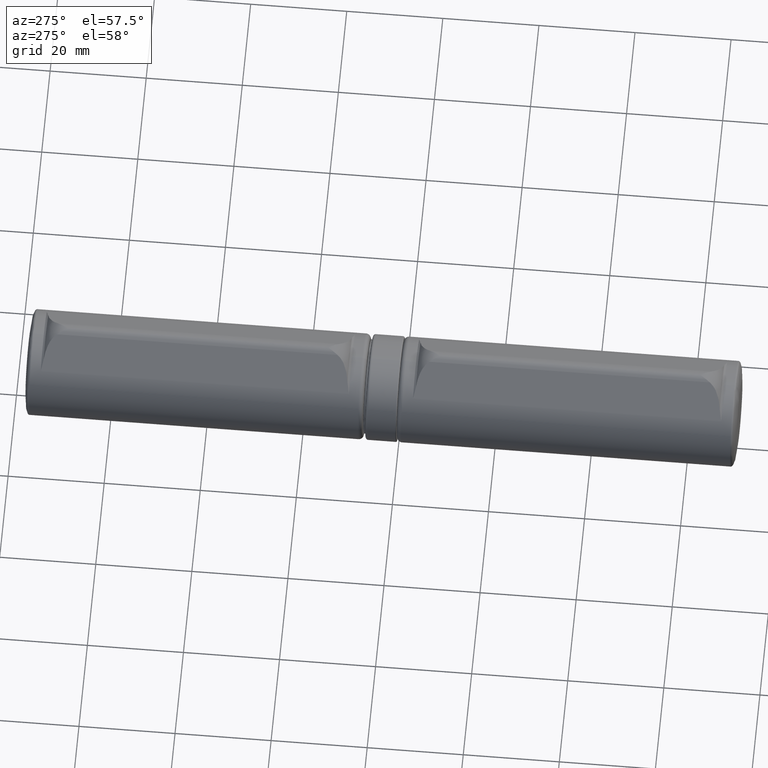
[diagram: clean part render]
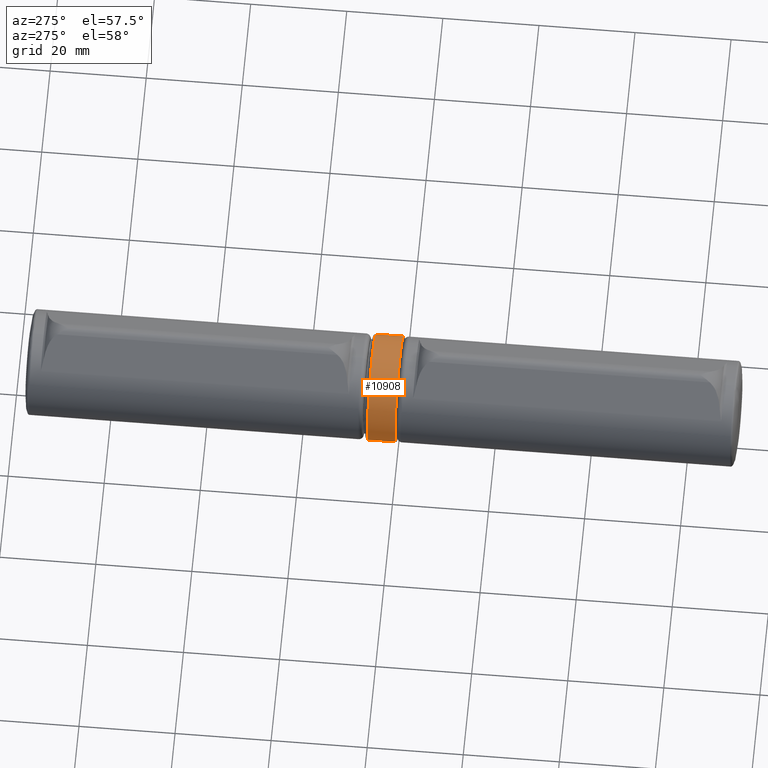
[diagram: same view with one face highlighted and labeled with its STEP entity id]
A machine part, auxiliary view. The second image highlights one B-rep face of the part: STEP entity #10908.
In plain terms, the highlighted cylindrical surface (bore or boss wall) has radius 11 mm, axis along (0, 1, 0).
Its self-contained STEP definition (entity closure, byte-faithful):
#71 = VERTEX_POINT ( 'NONE', #438 ) ;
#336 = ORIENTED_EDGE ( 'NONE', *, *, #6081, .T. ) ;
#435 = CARTESIAN_POINT ( 'NONE',  ( 0.000000000000000000, 2.600000000000001421, 0.000000000000000000 ) ) ;
#438 = CARTESIAN_POINT ( 'NONE',  ( 0.000000000000000000, -3.149999999999999911, 11.00000000000000000 ) ) ;
#574 = VERTEX_POINT ( 'NONE', #5360 ) ;
#951 = EDGE_LOOP ( 'NONE', ( #1462 ) ) ;
#1254 = DIRECTION ( 'NONE',  ( 0.000000000000000000, 0.000000000000000000, -1.000000000000000000 ) ) ;
#1462 = ORIENTED_EDGE ( 'NONE', *, *, #2980, .T. ) ;
#1522 = CARTESIAN_POINT ( 'NONE',  ( 0.000000000000000000, -3.149999999999999911, 0.000000000000000000 ) ) ;
#1921 = CARTESIAN_POINT ( 'NONE',  ( 0.000000000000000000, 0.000000000000000000, 0.000000000000000000 ) ) ;
#2320 = DIRECTION ( 'NONE',  ( -0.000000000000000000, 1.000000000000000000, -0.000000000000000000 ) ) ;
#2535 = FACE_OUTER_BOUND ( 'NONE', #3155, .T. ) ;
#2980 = EDGE_CURVE ( 'NONE', #574, #574, #6976, .T. ) ;
#3155 = EDGE_LOOP ( 'NONE', ( #336 ) ) ;
#4631 = DIRECTION ( 'NONE',  ( 0.000000000000000000, -1.000000000000000000, 0.000000000000000000 ) ) ;
#5249 = AXIS2_PLACEMENT_3D ( 'NONE', #1522, #2320, #9992 ) ;
#5296 = CIRCLE ( 'NONE', #5249, 11.00000000000000000 ) ;
#5299 = CYLINDRICAL_SURFACE ( 'NONE', #7003, 11.00000000000000000 ) ;
#5360 = CARTESIAN_POINT ( 'NONE',  ( 0.000000000000000000, 2.600000000000001421, -11.00000000000000000 ) ) ;
#5982 = FACE_OUTER_BOUND ( 'NONE', #951, .T. ) ;
#6081 = EDGE_CURVE ( 'NONE', #71, #71, #5296, .T. ) ;
#6911 = DIRECTION ( 'NONE',  ( 0.000000000000000000, 0.000000000000000000, 1.000000000000000000 ) ) ;
#6976 = CIRCLE ( 'NONE', #8739, 11.00000000000000000 ) ;
#7003 = AXIS2_PLACEMENT_3D ( 'NONE', #1921, #7018, #6911 ) ;
#7018 = DIRECTION ( 'NONE',  ( -0.000000000000000000, 1.000000000000000000, -0.000000000000000000 ) ) ;
#8739 = AXIS2_PLACEMENT_3D ( 'NONE', #435, #4631, #1254 ) ;
#9992 = DIRECTION ( 'NONE',  ( 0.000000000000000000, 0.000000000000000000, 1.000000000000000000 ) ) ;
#10908 = ADVANCED_FACE ( 'NONE', ( #2535, #5982 ), #5299, .T. ) ;